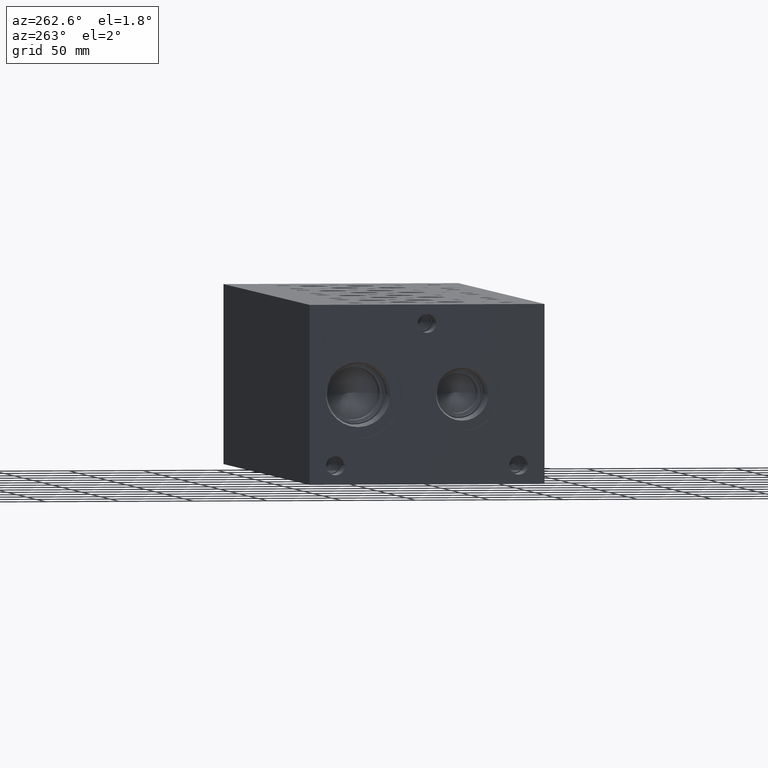
[diagram: clean part render]
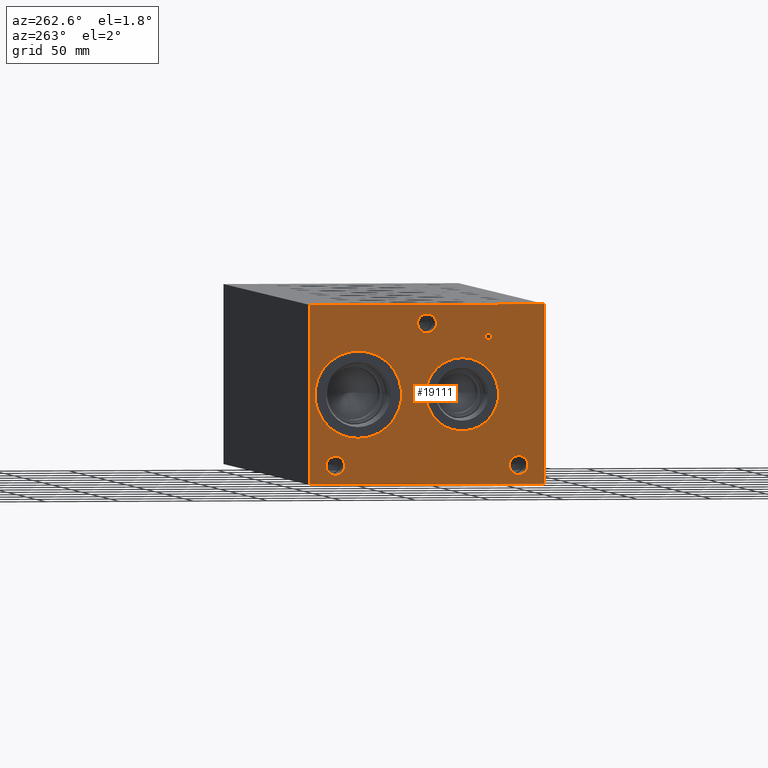
[diagram: same view with one face highlighted and labeled with its STEP entity id]
A machine part, auxiliary view. The second image highlights one B-rep face of the part: STEP entity #19111.
In plain terms, the highlighted planar face has unit normal (-1, 0, 0).
Its self-contained STEP definition (entity closure, byte-faithful):
#372=CIRCLE('',#20178,6.35);
#373=CIRCLE('',#20179,6.35);
#374=CIRCLE('',#20180,6.35);
#375=CIRCLE('',#20181,6.35);
#376=CIRCLE('',#20182,6.35);
#377=CIRCLE('',#20183,6.35);
#378=CIRCLE('',#20184,24.5618);
#379=CIRCLE('',#20185,24.5618);
#380=CIRCLE('',#20186,29.2862);
#381=CIRCLE('',#20187,29.2862);
#1078=FACE_BOUND('',#2857,.T.);
#1079=FACE_BOUND('',#2858,.T.);
#1080=FACE_BOUND('',#2859,.T.);
#1081=FACE_BOUND('',#2860,.T.);
#1082=FACE_BOUND('',#2861,.T.);
#1083=FACE_BOUND('',#2862,.T.);
#1084=FACE_BOUND('',#2863,.T.);
#1307=B_SPLINE_CURVE_WITH_KNOTS('',2,(#27178,#27179,#27180,#27181),
 .UNSPECIFIED.,.F.,.F.,(3,1,3),(0.,1.,2.),.UNSPECIFIED.);
#1309=B_SPLINE_CURVE_WITH_KNOTS('',2,(#27199,#27200,#27201,#27202),
 .UNSPECIFIED.,.F.,.F.,(3,1,3),(0.,1.,2.),.UNSPECIFIED.);
#1311=B_SPLINE_CURVE_WITH_KNOTS('',2,(#27248,#27249,#27250,#27251),
 .UNSPECIFIED.,.F.,.F.,(3,1,3),(0.,1.,2.),.UNSPECIFIED.);
#1313=B_SPLINE_CURVE_WITH_KNOTS('',2,(#27266,#27267,#27268,#27269),
 .UNSPECIFIED.,.F.,.F.,(3,1,3),(0.,1.,2.),.UNSPECIFIED.);
#1789=FACE_OUTER_BOUND('',#2856,.T.);
#2856=EDGE_LOOP('',(#12597,#12598,#12599,#12600));
#2857=EDGE_LOOP('',(#12601,#12602,#12603,#12604,#12605,#12606,#12607,#12608));
#2858=EDGE_LOOP('',(#12609,#12610));
#2859=EDGE_LOOP('',(#12611,#12612));
#2860=EDGE_LOOP('',(#12613,#12614));
#2861=EDGE_LOOP('',(#12615,#12616));
#2862=EDGE_LOOP('',(#12617,#12618));
#2863=EDGE_LOOP('',(#12619,#12620,#12621,#12622,#12623,#12624,#12625,#12626,
#12627));
#4126=LINE('',#27028,#5897);
#4130=LINE('',#27036,#5901);
#4133=LINE('',#27042,#5904);
#4136=LINE('',#27048,#5907);
#4139=LINE('',#27054,#5910);
#4142=LINE('',#27060,#5913);
#4145=LINE('',#27066,#5916);
#4148=LINE('',#27071,#5919);
#4166=LINE('',#27211,#5937);
#4169=LINE('',#27217,#5940);
#4172=LINE('',#27223,#5943);
#4175=LINE('',#27229,#5946);
#4178=LINE('',#27235,#5949);
#4182=LINE('',#27278,#5953);
#4183=LINE('',#27280,#5954);
#4184=LINE('',#27282,#5955);
#4185=LINE('',#27283,#5956);
#5897=VECTOR('',#21866,10.);
#5901=VECTOR('',#21872,10.);
#5904=VECTOR('',#21877,10.);
#5907=VECTOR('',#21882,10.);
#5910=VECTOR('',#21887,10.);
#5913=VECTOR('',#21892,10.);
#5916=VECTOR('',#21897,10.);
#5919=VECTOR('',#21902,10.);
#5937=VECTOR('',#21930,10.);
#5940=VECTOR('',#21935,10.);
#5943=VECTOR('',#21940,10.);
#5946=VECTOR('',#21945,10.);
#5949=VECTOR('',#21950,10.);
#5953=VECTOR('',#21958,10.);
#5954=VECTOR('',#21959,10.);
#5955=VECTOR('',#21960,10.);
#5956=VECTOR('',#21961,10.);
#7670=VERTEX_POINT('',#27026);
#7671=VERTEX_POINT('',#27027);
#7674=VERTEX_POINT('',#27035);
#7676=VERTEX_POINT('',#27041);
#7678=VERTEX_POINT('',#27047);
#7680=VERTEX_POINT('',#27053);
#7682=VERTEX_POINT('',#27059);
#7684=VERTEX_POINT('',#27065);
#7700=VERTEX_POINT('',#27176);
#7701=VERTEX_POINT('',#27177);
#7704=VERTEX_POINT('',#27198);
#7706=VERTEX_POINT('',#27210);
#7708=VERTEX_POINT('',#27216);
#7710=VERTEX_POINT('',#27222);
#7712=VERTEX_POINT('',#27228);
#7714=VERTEX_POINT('',#27234);
#7716=VERTEX_POINT('',#27247);
#7718=VERTEX_POINT('',#27276);
#7719=VERTEX_POINT('',#27277);
#7720=VERTEX_POINT('',#27279);
#7721=VERTEX_POINT('',#27281);
#7722=VERTEX_POINT('',#27284);
#7723=VERTEX_POINT('',#27285);
#7724=VERTEX_POINT('',#27288);
#7725=VERTEX_POINT('',#27289);
#7726=VERTEX_POINT('',#27292);
#7727=VERTEX_POINT('',#27293);
#7728=VERTEX_POINT('',#27296);
#7729=VERTEX_POINT('',#27297);
#7730=VERTEX_POINT('',#27300);
#7731=VERTEX_POINT('',#27301);
#9632=EDGE_CURVE('',#7670,#7671,#4126,.T.);
#9636=EDGE_CURVE('',#7674,#7670,#4130,.T.);
#9639=EDGE_CURVE('',#7676,#7674,#4133,.T.);
#9642=EDGE_CURVE('',#7678,#7676,#4136,.T.);
#9645=EDGE_CURVE('',#7680,#7678,#4139,.T.);
#9648=EDGE_CURVE('',#7682,#7680,#4142,.T.);
#9651=EDGE_CURVE('',#7684,#7682,#4145,.T.);
#9654=EDGE_CURVE('',#7671,#7684,#4148,.T.);
#9677=EDGE_CURVE('',#7700,#7701,#1307,.T.);
#9681=EDGE_CURVE('',#7704,#7700,#1309,.T.);
#9684=EDGE_CURVE('',#7706,#7704,#4166,.T.);
#9687=EDGE_CURVE('',#7708,#7706,#4169,.T.);
#9690=EDGE_CURVE('',#7710,#7708,#4172,.T.);
#9693=EDGE_CURVE('',#7712,#7710,#4175,.T.);
#9696=EDGE_CURVE('',#7714,#7712,#4178,.T.);
#9699=EDGE_CURVE('',#7716,#7714,#1311,.T.);
#9702=EDGE_CURVE('',#7701,#7716,#1313,.T.);
#9704=EDGE_CURVE('',#7718,#7719,#4182,.T.);
#9705=EDGE_CURVE('',#7719,#7720,#4183,.T.);
#9706=EDGE_CURVE('',#7721,#7720,#4184,.T.);
#9707=EDGE_CURVE('',#7718,#7721,#4185,.T.);
#9708=EDGE_CURVE('',#7722,#7723,#372,.T.);
#9709=EDGE_CURVE('',#7723,#7722,#373,.T.);
#9710=EDGE_CURVE('',#7724,#7725,#374,.T.);
#9711=EDGE_CURVE('',#7725,#7724,#375,.T.);
#9712=EDGE_CURVE('',#7726,#7727,#376,.T.);
#9713=EDGE_CURVE('',#7727,#7726,#377,.T.);
#9714=EDGE_CURVE('',#7728,#7729,#378,.T.);
#9715=EDGE_CURVE('',#7729,#7728,#379,.T.);
#9716=EDGE_CURVE('',#7730,#7731,#380,.T.);
#9717=EDGE_CURVE('',#7731,#7730,#381,.T.);
#12597=ORIENTED_EDGE('',*,*,#9704,.T.);
#12598=ORIENTED_EDGE('',*,*,#9705,.T.);
#12599=ORIENTED_EDGE('',*,*,#9706,.F.);
#12600=ORIENTED_EDGE('',*,*,#9707,.F.);
#12601=ORIENTED_EDGE('',*,*,#9632,.T.);
#12602=ORIENTED_EDGE('',*,*,#9654,.T.);
#12603=ORIENTED_EDGE('',*,*,#9651,.T.);
#12604=ORIENTED_EDGE('',*,*,#9648,.T.);
#12605=ORIENTED_EDGE('',*,*,#9645,.T.);
#12606=ORIENTED_EDGE('',*,*,#9642,.T.);
#12607=ORIENTED_EDGE('',*,*,#9639,.T.);
#12608=ORIENTED_EDGE('',*,*,#9636,.T.);
#12609=ORIENTED_EDGE('',*,*,#9708,.T.);
#12610=ORIENTED_EDGE('',*,*,#9709,.T.);
#12611=ORIENTED_EDGE('',*,*,#9710,.T.);
#12612=ORIENTED_EDGE('',*,*,#9711,.T.);
#12613=ORIENTED_EDGE('',*,*,#9712,.T.);
#12614=ORIENTED_EDGE('',*,*,#9713,.T.);
#12615=ORIENTED_EDGE('',*,*,#9714,.T.);
#12616=ORIENTED_EDGE('',*,*,#9715,.T.);
#12617=ORIENTED_EDGE('',*,*,#9716,.T.);
#12618=ORIENTED_EDGE('',*,*,#9717,.T.);
#12619=ORIENTED_EDGE('',*,*,#9677,.T.);
#12620=ORIENTED_EDGE('',*,*,#9702,.T.);
#12621=ORIENTED_EDGE('',*,*,#9699,.T.);
#12622=ORIENTED_EDGE('',*,*,#9696,.T.);
#12623=ORIENTED_EDGE('',*,*,#9693,.T.);
#12624=ORIENTED_EDGE('',*,*,#9690,.T.);
#12625=ORIENTED_EDGE('',*,*,#9687,.T.);
#12626=ORIENTED_EDGE('',*,*,#9684,.T.);
#12627=ORIENTED_EDGE('',*,*,#9681,.T.);
#17923=PLANE('',#20177);
#19111=ADVANCED_FACE('',(#1789,#1078,#1079,#1080,#1081,#1082,#1083,#1084),
#17923,.T.);
#20177=AXIS2_PLACEMENT_3D('',#27275,#21956,#21957);
#20178=AXIS2_PLACEMENT_3D('',#27286,#21962,#21963);
#20179=AXIS2_PLACEMENT_3D('',#27287,#21964,#21965);
#20180=AXIS2_PLACEMENT_3D('',#27290,#21966,#21967);
#20181=AXIS2_PLACEMENT_3D('',#27291,#21968,#21969);
#20182=AXIS2_PLACEMENT_3D('',#27294,#21970,#21971);
#20183=AXIS2_PLACEMENT_3D('',#27295,#21972,#21973);
#20184=AXIS2_PLACEMENT_3D('',#27298,#21974,#21975);
#20185=AXIS2_PLACEMENT_3D('',#27299,#21976,#21977);
#20186=AXIS2_PLACEMENT_3D('',#27302,#21978,#21979);
#20187=AXIS2_PLACEMENT_3D('',#27303,#21980,#21981);
#21866=DIRECTION('',(0.,1.,0.));
#21872=DIRECTION('',(0.,3.17280044688051E-15,-1.));
#21877=DIRECTION('',(0.,1.,8.33818088455555E-15));
#21882=DIRECTION('',(0.,0.,-1.));
#21887=DIRECTION('',(0.,-1.,-3.47984565141734E-15));
#21892=DIRECTION('',(0.,0.,1.));
#21897=DIRECTION('',(0.,1.,0.));
#21902=DIRECTION('',(0.,-3.17280044688051E-15,1.));
#21930=DIRECTION('',(0.,-1.,0.));
#21935=DIRECTION('',(0.,-4.19611858128769E-15,1.));
#21940=DIRECTION('',(0.,1.,0.));
#21945=DIRECTION('',(0.,3.75218139805001E-15,-1.));
#21950=DIRECTION('',(0.,1.,0.));
#21956=DIRECTION('center_axis',(-1.,0.,0.));
#21957=DIRECTION('ref_axis',(0.,-1.,0.));
#21958=DIRECTION('',(0.,-1.,0.));
#21959=DIRECTION('',(0.,0.,1.));
#21960=DIRECTION('',(0.,-1.,0.));
#21961=DIRECTION('',(0.,0.,1.));
#21962=DIRECTION('center_axis',(1.,0.,0.));
#21963=DIRECTION('ref_axis',(0.,1.,0.));
#21964=DIRECTION('center_axis',(1.,0.,0.));
#21965=DIRECTION('ref_axis',(0.,1.,0.));
#21966=DIRECTION('center_axis',(1.,0.,0.));
#21967=DIRECTION('ref_axis',(0.,1.,0.));
#21968=DIRECTION('center_axis',(1.,0.,0.));
#21969=DIRECTION('ref_axis',(0.,1.,0.));
#21970=DIRECTION('center_axis',(1.,0.,0.));
#21971=DIRECTION('ref_axis',(0.,1.,0.));
#21972=DIRECTION('center_axis',(1.,0.,0.));
#21973=DIRECTION('ref_axis',(0.,1.,0.));
#21974=DIRECTION('center_axis',(1.,0.,0.));
#21975=DIRECTION('ref_axis',(0.,0.,1.));
#21976=DIRECTION('center_axis',(1.,0.,0.));
#21977=DIRECTION('ref_axis',(0.,0.,1.));
#21978=DIRECTION('center_axis',(1.,0.,0.));
#21979=DIRECTION('ref_axis',(0.,0.,1.));
#21980=DIRECTION('center_axis',(1.,0.,0.));
#21981=DIRECTION('ref_axis',(0.,0.,1.));
#27026=CARTESIAN_POINT('',(0.,149.278434728547,94.615));
#27027=CARTESIAN_POINT('',(0.,150.122356920087,94.615));
#27028=CARTESIAN_POINT('',(0.,154.014217364273,94.615));
#27035=CARTESIAN_POINT('',(0.,149.278434728547,100.213703319482));
#27036=CARTESIAN_POINT('',(0.,149.278434728547,50.1068516597408));
#27041=CARTESIAN_POINT('',(0.,147.148045781612,100.213703319482));
#27042=CARTESIAN_POINT('',(0.,152.949022890806,100.213703319482));
#27047=CARTESIAN_POINT('',(0.,147.148045781612,100.964999904633));
#27048=CARTESIAN_POINT('',(0.,147.148045781612,50.4824999523163));
#27053=CARTESIAN_POINT('',(0.,152.252745867022,100.964999904633));
#27054=CARTESIAN_POINT('',(0.,155.501372933511,100.964999904633));
#27059=CARTESIAN_POINT('',(0.,152.252745867022,100.213703319482));
#27060=CARTESIAN_POINT('',(0.,152.252745867022,50.1068516597408));
#27065=CARTESIAN_POINT('',(0.,150.122356920086,100.213703319482));
#27066=CARTESIAN_POINT('',(0.,154.436178460043,100.213703319482));
#27071=CARTESIAN_POINT('',(0.,150.122356920087,47.3075));
#27176=CARTESIAN_POINT('',(0.,36.4346327976406,100.568768143971));
#27177=CARTESIAN_POINT('',(0.,35.678190345468,99.050737372604));
#27178=CARTESIAN_POINT('Ctrl Pts',(0.,36.4346327976406,100.568768143971));
#27179=CARTESIAN_POINT('Ctrl Pts',(0.,36.0795679731514,100.326912393956));
#27180=CARTESIAN_POINT('Ctrl Pts',(0.,35.678190345468,99.5807616758269));
#27181=CARTESIAN_POINT('Ctrl Pts',(0.,35.678190345468,99.050737372604));
#27198=CARTESIAN_POINT('',(0.,38.0967478456117,100.964999904633));
#27199=CARTESIAN_POINT('Ctrl Pts',(0.,38.0967478456117,100.964999904633));
#27200=CARTESIAN_POINT('Ctrl Pts',(0.,37.5307024732376,100.964999904633));
#27201=CARTESIAN_POINT('Ctrl Pts',(0.,36.738238951914,100.779748691856));
#27202=CARTESIAN_POINT('Ctrl Pts',(0.,36.4346327976406,100.568768143971));
#27210=CARTESIAN_POINT('',(0.,39.6919666223022,100.964999904633));
#27211=CARTESIAN_POINT('',(0.,99.2209833111511,100.964999904633));
#27216=CARTESIAN_POINT('',(0.,39.6919666223022,94.615));
#27217=CARTESIAN_POINT('',(0.,39.6919666223024,47.3074999999998));
#27222=CARTESIAN_POINT('',(0.,38.8480444307627,94.615));
#27223=CARTESIAN_POINT('',(0.,98.7990222153814,94.615));
#27228=CARTESIAN_POINT('',(0.,38.8480444307627,96.9820988299279));
#27229=CARTESIAN_POINT('',(0.,38.8480444307629,48.4910494149637));
#27234=CARTESIAN_POINT('',(0.,38.1327689147628,96.9820988299279));
#27235=CARTESIAN_POINT('',(0.,98.4413844573814,96.9820988299279));
#27247=CARTESIAN_POINT('',(0.,36.2339439837989,97.6407698086904));
#27248=CARTESIAN_POINT('Ctrl Pts',(0.,36.2339439837989,97.6407698086904));
#27249=CARTESIAN_POINT('Ctrl Pts',(0.,36.5632794731802,97.3165801863307));
#27250=CARTESIAN_POINT('Ctrl Pts',(0.,37.4535144679139,96.9820988299279));
#27251=CARTESIAN_POINT('Ctrl Pts',(0.,38.1327689147628,96.9820988299279));
#27266=CARTESIAN_POINT('Ctrl Pts',(0.,35.678190345468,99.050737372604));
#27267=CARTESIAN_POINT('Ctrl Pts',(0.,35.678190345468,98.6390680108774));
#27268=CARTESIAN_POINT('Ctrl Pts',(0.,35.9715047656982,97.8980631597695));
#27269=CARTESIAN_POINT('Ctrl Pts',(0.,36.2339439837989,97.6407698086904));
#27275=CARTESIAN_POINT('Origin',(0.,158.75,0.));
#27276=CARTESIAN_POINT('',(0.,158.75,0.));
#27277=CARTESIAN_POINT('',(0.,0.,0.));
#27278=CARTESIAN_POINT('',(0.,158.75,0.));
#27279=CARTESIAN_POINT('',(0.,0.,120.65));
#27280=CARTESIAN_POINT('',(0.,0.,0.));
#27281=CARTESIAN_POINT('',(0.,158.75,120.65));
#27282=CARTESIAN_POINT('',(0.,158.75,120.65));
#27283=CARTESIAN_POINT('',(0.,158.75,0.));
#27284=CARTESIAN_POINT('',(0.,85.725,107.95));
#27285=CARTESIAN_POINT('',(0.,73.025,107.95));
#27286=CARTESIAN_POINT('Origin',(0.,79.375,107.95));
#27287=CARTESIAN_POINT('Origin',(0.,79.375,107.95));
#27288=CARTESIAN_POINT('',(0.,147.6248,12.7));
#27289=CARTESIAN_POINT('',(0.,134.9248,12.7));
#27290=CARTESIAN_POINT('Origin',(0.,141.2748,12.7));
#27291=CARTESIAN_POINT('Origin',(0.,141.2748,12.7));
#27292=CARTESIAN_POINT('',(0.,23.8252,12.7));
#27293=CARTESIAN_POINT('',(0.,11.1252,12.7));
#27294=CARTESIAN_POINT('Origin',(0.,17.4752,12.7));
#27295=CARTESIAN_POINT('Origin',(0.,17.4752,12.7));
#27296=CARTESIAN_POINT('',(0.,55.5752,84.8868));
#27297=CARTESIAN_POINT('',(6.93889390390723E-17,55.5752,35.7632));
#27298=CARTESIAN_POINT('Origin',(0.,55.5752,60.325));
#27299=CARTESIAN_POINT('Origin',(0.,55.5752,60.325));
#27300=CARTESIAN_POINT('',(0.,125.8316,89.6112));
#27301=CARTESIAN_POINT('',(0.,125.8316,31.0388));
#27302=CARTESIAN_POINT('Origin',(0.,125.8316,60.325));
#27303=CARTESIAN_POINT('Origin',(0.,125.8316,60.325));